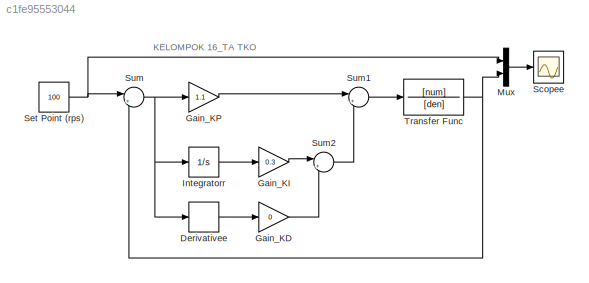
MODEL slx_c1fe95553044
KIND model
CONFIG AbsTol = auto
CONFIG EnableMultiTasking = off
CONFIG FixedStep = auto
CONFIG MaxStep = auto
CONFIG MinStep = auto
CONFIG RelTol = 1e-3
CONFIG SampleTimeConstraint = Unconstrained
CONFIG SolverName = VariableStepAuto
CONFIG StartTime = 0.0
CONFIG StopTime = 10.0
BLOCK [Derivative] Derivativee
BLOCK [Gain] Gain_KD
  Gain = 0
BLOCK [Gain] Gain_KI
  Gain = 0.3
BLOCK [Gain] Gain_KP
  Gain = 1.1
BLOCK [Integrator] Integratorr
  Ports = [1, 1]
BLOCK [Mux] Mux
  DisplayOption = bar
  Inputs = 2
  Ports = [2, 1]
BLOCK [Scope] Scopee
  Floating = off
  NumInputPorts = 1
  Ports = [1]
  ScopeSpecificationString = Simulink.scopes.TimeScopeBlockCfg('CurrentConfiguration', extmgr.ConfigurationSet(extmgr.Configuration('Core','General UI',true),extmgr.Configuration('Core','Source UI',true),extmgr.Configuration('Sources','WiredSimulink',true),extmgr.Configuration('Visuals','Time Domain',true,'SerializedDisplays',{struct('MinYLimReal','-2.79292','MaxYLimReal','165.79529','YLabelReal','','MinYLimMag','0.00000','Ma...<+1407ch>
BLOCK [Constant] Set Point (rps)
  Value = 100
BLOCK [Sum] Sum
  Inputs = |+-
  Ports = [2, 1]
BLOCK [Sum] Sum1
  Inputs = |++
  Ports = [2, 1]
BLOCK [Sum] Sum2
  Inputs = |++
  Ports = [2, 1]
BLOCK [TransferFcn] Transfer Func
  Denominator = [den]
  Numerator = [num]
ANNOTATION (root): KELOMPOK 16_TA TKO
LINE Derivativee:1 -> Gain_KD:1
LINE Gain_KD:1 -> Sum2:2
LINE Gain_KI:1 -> Sum2:1
LINE Gain_KP:1 -> Sum1:1
LINE Integratorr:1 -> Gain_KI:1
LINE Mux:1 -> Scopee:1
NET Set Point (rps):1 -> Mux:1, Sum:1
LINE Sum1:1 -> Transfer Func:1
LINE Sum2:1 -> Sum1:2
NET Sum:1 -> Derivativee:1, Gain_KP:1, Integratorr:1
NET Transfer Func:1 -> Mux:2, Sum:2
note: NET lines group one-source signal fan-out (src -> all destinations, sorted); 1:1 wires keep LINE
